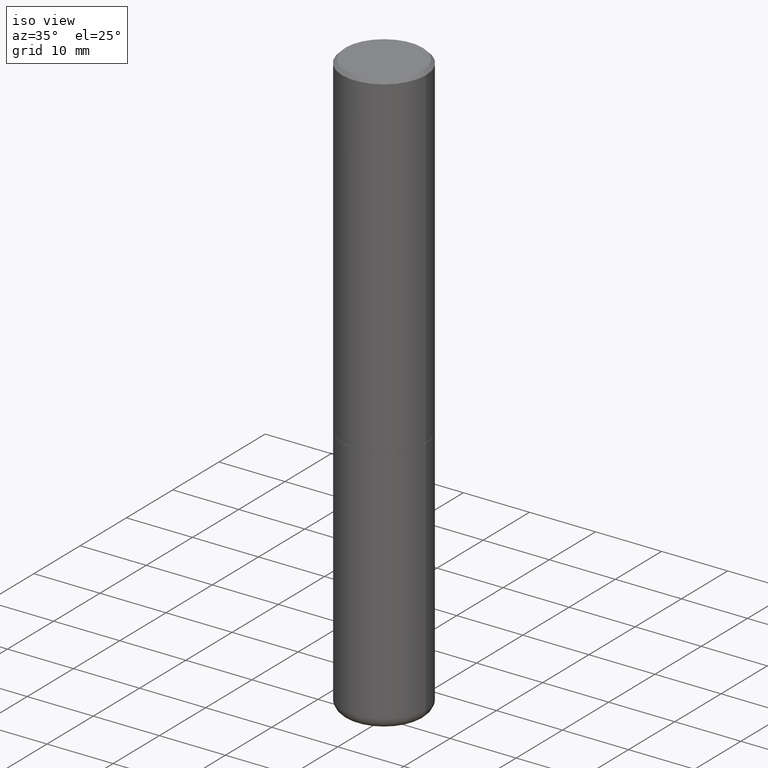
[diagram: clean part render]
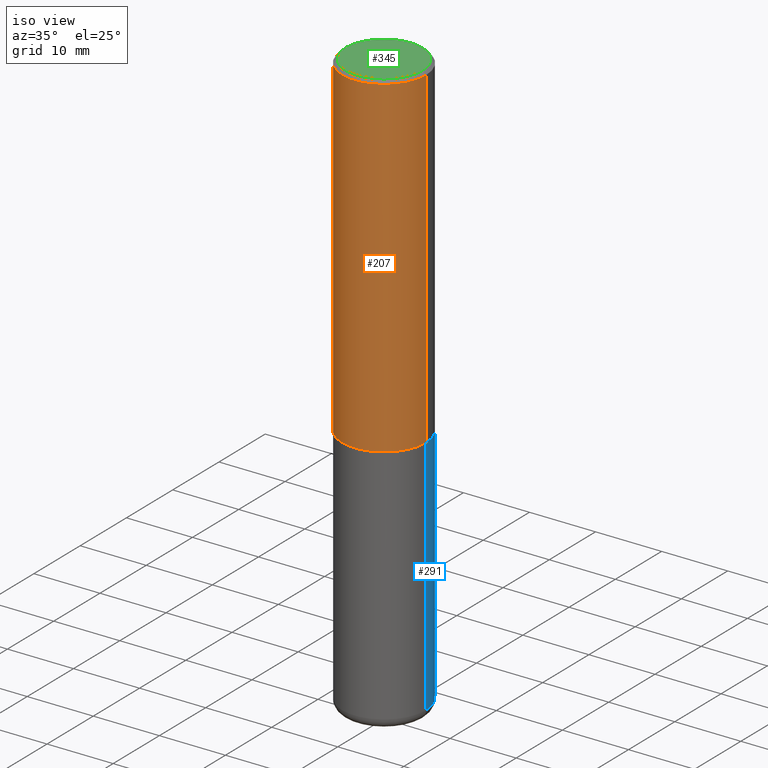
[diagram: same view with three faces highlighted in distinct colors, each labeled with its STEP entity id]
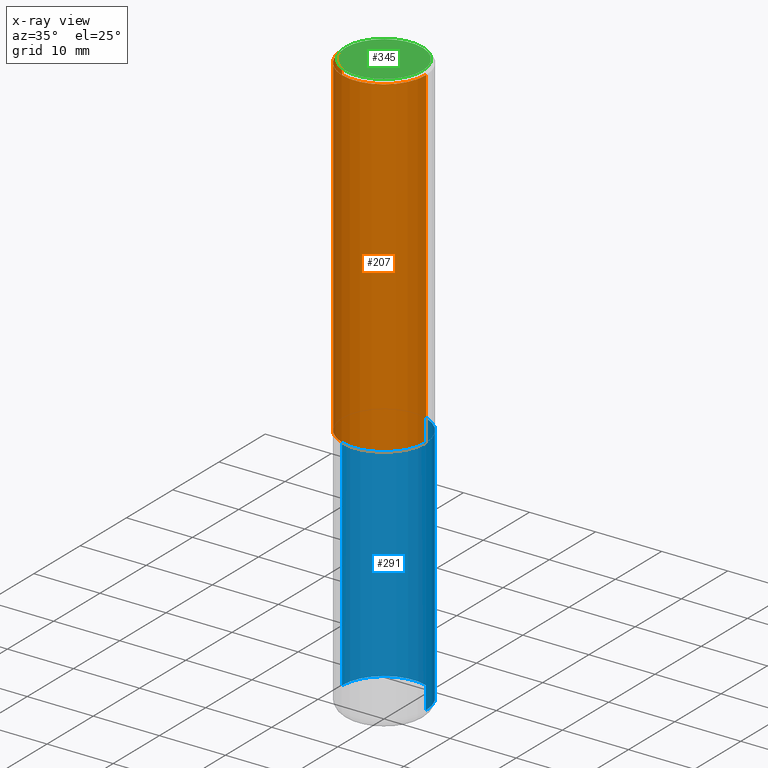
[diagram: x-ray of the same camera — body ghosted, the three highlighted faces saturated]
A machine part, iso view with three faces highlighted in distinct colors.
The next image is the same camera in x-ray (body ghosted, the three faces saturated) — at least one of them is partly hidden behind the body in this view.
Their STEP definitions:

[orange] entity #207 — the highlighted cylindrical surface (partial cylindrical patch) has radius 6.35 mm, axis along (-0, 0, 1).
#12 = CARTESIAN_POINT ( 'NONE',  ( 0.2500000000000001110, -1.745740669421567467E-15, 1.219044193948984509E-29 ) ) ;
#38 = CARTESIAN_POINT ( 'NONE',  ( -0.2500000000000001110, 1.776356839400251254E-15, -1.229733772563727006E-29 ) ) ;
#59 = VERTEX_POINT ( 'NONE', #404 ) ;
#67 = DIRECTION ( 'NONE',  ( -2.445468806185136877E-29, 3.491481338843145188E-15, 1.000000000000000000 ) ) ;
#79 = EDGE_CURVE ( 'NONE', #59, #357, #184, .T. ) ;
#84 = CIRCLE ( 'NONE', #373, 0.2500000000000002776 ) ;
#85 = DIRECTION ( 'NONE',  ( 1.000000000000000000, -6.982962677686267499E-15, 0.000000000000000000 ) ) ;
#90 = ORIENTED_EDGE ( 'NONE', *, *, #399, .F. ) ;
#93 = ORIENTED_EDGE ( 'NONE', *, *, #276, .F. ) ;
#97 = ORIENTED_EDGE ( 'NONE', *, *, #79, .T. ) ;
#108 = EDGE_CURVE ( 'NONE', #163, #59, #84, .T. ) ;
#112 = AXIS2_PLACEMENT_3D ( 'NONE', #308, #381, #250 ) ;
#124 = CYLINDRICAL_SURFACE ( 'NONE', #112, 0.2500000000000001110 ) ;
#141 = CARTESIAN_POINT ( 'NONE',  ( 4.888492143564087591E-29, -6.979471196347447369E-15, -1.998999999999999888 ) ) ;
#145 = DIRECTION ( 'NONE',  ( -2.445468806185136597E-29, 3.491481338843145583E-15, 1.000000000000000000 ) ) ;
#153 = CARTESIAN_POINT ( 'NONE',  ( -0.2500000000000002776, -1.748293572161900530E-15, -1.998999999999999888 ) ) ;
#163 = VERTEX_POINT ( 'NONE', #153 ) ;
#164 = LINE ( 'NONE', #38, #360 ) ;
#184 = LINE ( 'NONE', #12, #414 ) ;
#207 = ADVANCED_FACE ( 'NONE', ( #413 ), #124, .T. ) ;
#217 = CIRCLE ( 'NONE', #232, 0.2499999999999999167 ) ;
#232 = AXIS2_PLACEMENT_3D ( 'NONE', #371, #334, #85 ) ;
#249 = VERTEX_POINT ( 'NONE', #259 ) ;
#250 = DIRECTION ( 'NONE',  ( 1.000000000000000000, -6.982962677686266711E-15, 4.876176775795935793E-29 ) ) ;
#259 = CARTESIAN_POINT ( 'NONE',  ( -0.2499999999999999167, 1.675911042644703182E-15, -0.02000000000000005593 ) ) ;
#270 = DIRECTION ( 'NONE',  ( -2.445468806185136877E-29, 3.491481338843145188E-15, 1.000000000000000000 ) ) ;
#276 = EDGE_CURVE ( 'NONE', #163, #249, #164, .T. ) ;
#287 = ORIENTED_EDGE ( 'NONE', *, *, #108, .T. ) ;
#308 = CARTESIAN_POINT ( 'NONE',  ( 0.000000000000000000, 0.000000000000000000, 0.000000000000000000 ) ) ;
#333 = DIRECTION ( 'NONE',  ( 1.000000000000000000, -6.982962677686266711E-15, 0.000000000000000000 ) ) ;
#334 = DIRECTION ( 'NONE',  ( -2.445468806185136597E-29, 3.491481338843145583E-15, 1.000000000000000000 ) ) ;
#357 = VERTEX_POINT ( 'NONE', #400 ) ;
#360 = VECTOR ( 'NONE', #67, 39.37007874015748143 ) ;
#371 = CARTESIAN_POINT ( 'NONE',  ( 4.890937612370287172E-31, -6.982962677686310098E-17, -0.02000000000000005593 ) ) ;
#373 = AXIS2_PLACEMENT_3D ( 'NONE', #141, #145, #333 ) ;
#381 = DIRECTION ( 'NONE',  ( -2.445468806185136597E-29, 3.491481338843145583E-15, 1.000000000000000000 ) ) ;
#391 = EDGE_LOOP ( 'NONE', ( #93, #287, #97, #90 ) ) ;
#399 = EDGE_CURVE ( 'NONE', #249, #357, #217, .T. ) ;
#400 = CARTESIAN_POINT ( 'NONE',  ( 0.2499999999999999167, -1.784954126219745400E-15, -0.02000000000000005593 ) ) ;
#404 = CARTESIAN_POINT ( 'NONE',  ( 0.2500000000000002776, -8.725211865769015625E-15, -1.998999999999999888 ) ) ;
#413 = FACE_OUTER_BOUND ( 'NONE', #391, .T. ) ;
#414 = VECTOR ( 'NONE', #270, 39.37007874015748143 ) ;

[blue] entity #291 — the highlighted cylindrical surface (partial cylindrical patch) has radius 6.35 mm, axis along (-0, 0, 1).
#26 = CIRCLE ( 'NONE', #267, 0.2500000000000000000 ) ;
#33 = ORIENTED_EDGE ( 'NONE', *, *, #162, .T. ) ;
#37 = CARTESIAN_POINT ( 'NONE',  ( 0.2500000000000000000, -8.728703347107857054E-15, -2.000000000000000000 ) ) ;
#46 = LINE ( 'NONE', #181, #55 ) ;
#47 = LINE ( 'NONE', #183, #194 ) ;
#48 = CARTESIAN_POINT ( 'NONE',  ( -0.2499999999999999722, -1.023433896622016898E-14, -3.439999999999999947 ) ) ;
#55 = VECTOR ( 'NONE', #339, 39.37007874015748143 ) ;
#66 = VERTEX_POINT ( 'NONE', #48 ) ;
#69 = CARTESIAN_POINT ( 'NONE',  ( 8.412412693276869938E-29, -1.201069580562042103E-14, -3.439999999999999947 ) ) ;
#70 = AXIS2_PLACEMENT_3D ( 'NONE', #143, #114, #301 ) ;
#72 = FACE_OUTER_BOUND ( 'NONE', #350, .T. ) ;
#102 = DIRECTION ( 'NONE',  ( 1.000000000000000000, -6.982962677686266711E-15, 4.876176775795935793E-29 ) ) ;
#110 = DIRECTION ( 'NONE',  ( -2.445468806185136877E-29, 3.491481338843145188E-15, 1.000000000000000000 ) ) ;
#114 = DIRECTION ( 'NONE',  ( -2.445468806185136597E-29, 3.491481338843145583E-15, 1.000000000000000000 ) ) ;
#121 = EDGE_CURVE ( 'NONE', #417, #281, #46, .T. ) ;
#128 = ORIENTED_EDGE ( 'NONE', *, *, #121, .F. ) ;
#139 = CARTESIAN_POINT ( 'NONE',  ( 0.2499999999999999722, -1.375643647504198770E-14, -3.439999999999999947 ) ) ;
#143 = CARTESIAN_POINT ( 'NONE',  ( 4.890937612370273194E-29, -6.982962677686291165E-15, -2.000000000000000000 ) ) ;
#156 = EDGE_CURVE ( 'NONE', #281, #323, #341, .T. ) ;
#162 = EDGE_CURVE ( 'NONE', #66, #323, #47, .T. ) ;
#167 = DIRECTION ( 'NONE',  ( 1.000000000000000000, -6.982962677686270655E-15, 0.000000000000000000 ) ) ;
#171 = DIRECTION ( 'NONE',  ( -2.445468806185136597E-29, 3.491481338843145583E-15, 1.000000000000000000 ) ) ;
#173 = CYLINDRICAL_SURFACE ( 'NONE', #375, 0.2500000000000000000 ) ;
#181 = CARTESIAN_POINT ( 'NONE',  ( 0.2500000000000000000, -1.745740669421566678E-15, 1.219044193948983948E-29 ) ) ;
#183 = CARTESIAN_POINT ( 'NONE',  ( -0.2500000000000000000, 1.776356839400250465E-15, -1.229733772563726445E-29 ) ) ;
#194 = VECTOR ( 'NONE', #110, 39.37007874015748143 ) ;
#200 = ORIENTED_EDGE ( 'NONE', *, *, #240, .T. ) ;
#203 = DIRECTION ( 'NONE',  ( -2.445468806185136597E-29, 3.491481338843145583E-15, 1.000000000000000000 ) ) ;
#240 = EDGE_CURVE ( 'NONE', #417, #66, #26, .T. ) ;
#267 = AXIS2_PLACEMENT_3D ( 'NONE', #69, #203, #167 ) ;
#274 = ORIENTED_EDGE ( 'NONE', *, *, #156, .F. ) ;
#281 = VERTEX_POINT ( 'NONE', #37 ) ;
#284 = CARTESIAN_POINT ( 'NONE',  ( -0.2500000000000000000, -7.720472402253106025E-15, -2.000000000000000000 ) ) ;
#288 = CARTESIAN_POINT ( 'NONE',  ( 0.000000000000000000, 0.000000000000000000, 0.000000000000000000 ) ) ;
#291 = ADVANCED_FACE ( 'NONE', ( #72 ), #173, .T. ) ;
#301 = DIRECTION ( 'NONE',  ( 1.000000000000000000, -6.982962677686266711E-15, 0.000000000000000000 ) ) ;
#323 = VERTEX_POINT ( 'NONE', #284 ) ;
#339 = DIRECTION ( 'NONE',  ( -2.445468806185136877E-29, 3.491481338843145188E-15, 1.000000000000000000 ) ) ;
#341 = CIRCLE ( 'NONE', #70, 0.2500000000000000000 ) ;
#350 = EDGE_LOOP ( 'NONE', ( #200, #33, #274, #128 ) ) ;
#375 = AXIS2_PLACEMENT_3D ( 'NONE', #288, #171, #102 ) ;
#417 = VERTEX_POINT ( 'NONE', #139 ) ;

[green] entity #345 — the highlighted planar face has unit normal (0, -0, -1).
#25 = DIRECTION ( 'NONE',  ( 1.000000000000000000, -6.982962677686267499E-15, 4.876225828469310563E-29 ) ) ;
#49 = DIRECTION ( 'NONE',  ( -1.000000000000000000, 6.982962677686265922E-15, -4.876176775795935793E-29 ) ) ;
#91 = CARTESIAN_POINT ( 'NONE',  ( 2.087702828670439639E-46, -2.980686340760894400E-32, -8.537024980200822558E-18 ) ) ;
#95 = ORIENTED_EDGE ( 'NONE', *, *, #228, .T. ) ;
#105 = CARTESIAN_POINT ( 'NONE',  ( 1.606081415867840870E-15, 0.2299999999999999267, -8.073092204240237214E-16 ) ) ;
#118 = FACE_OUTER_BOUND ( 'NONE', #315, .T. ) ;
#131 = CARTESIAN_POINT ( 'NONE',  ( 2.087702828670439639E-46, -2.980686340760894400E-32, -8.537024980200822558E-18 ) ) ;
#147 = DIRECTION ( 'NONE',  ( 2.438088387897960049E-29, -3.491481338843145188E-15, -1.000000000000000000 ) ) ;
#165 = CIRCLE ( 'NONE', #214, 0.2299999999999999267 ) ;
#201 = AXIS2_PLACEMENT_3D ( 'NONE', #131, #324, #290 ) ;
#214 = AXIS2_PLACEMENT_3D ( 'NONE', #91, #220, #25 ) ;
#220 = DIRECTION ( 'NONE',  ( -2.445468806185136597E-29, 3.491481338843145583E-15, 1.000000000000000000 ) ) ;
#225 = ORIENTED_EDGE ( 'NONE', *, *, #299, .T. ) ;
#228 = EDGE_CURVE ( 'NONE', #252, #389, #165, .T. ) ;
#246 = PLANE ( 'NONE',  #368 ) ;
#252 = VERTEX_POINT ( 'NONE', #394 ) ;
#290 = DIRECTION ( 'NONE',  ( 1.000000000000000000, -6.982962677686267499E-15, 4.876225828469310563E-29 ) ) ;
#299 = EDGE_CURVE ( 'NONE', #389, #252, #325, .T. ) ;
#315 = EDGE_LOOP ( 'NONE', ( #225, #95 ) ) ;
#324 = DIRECTION ( 'NONE',  ( -2.445468806185136597E-29, 3.491481338843145583E-15, 1.000000000000000000 ) ) ;
#325 = CIRCLE ( 'NONE', #201, 0.2299999999999999267 ) ;
#345 = ADVANCED_FACE ( 'NONE', ( #118 ), #246, .F. ) ;
#367 = CARTESIAN_POINT ( 'NONE',  ( -0.2299999999999999267, 1.640996229256272125E-15, -8.537024980212177841E-18 ) ) ;
#368 = AXIS2_PLACEMENT_3D ( 'NONE', #105, #147, #49 ) ;
#389 = VERTEX_POINT ( 'NONE', #367 ) ;
#394 = CARTESIAN_POINT ( 'NONE',  ( 0.2299999999999999267, -1.681434332853598617E-15, -8.537024980189327067E-18 ) ) ;